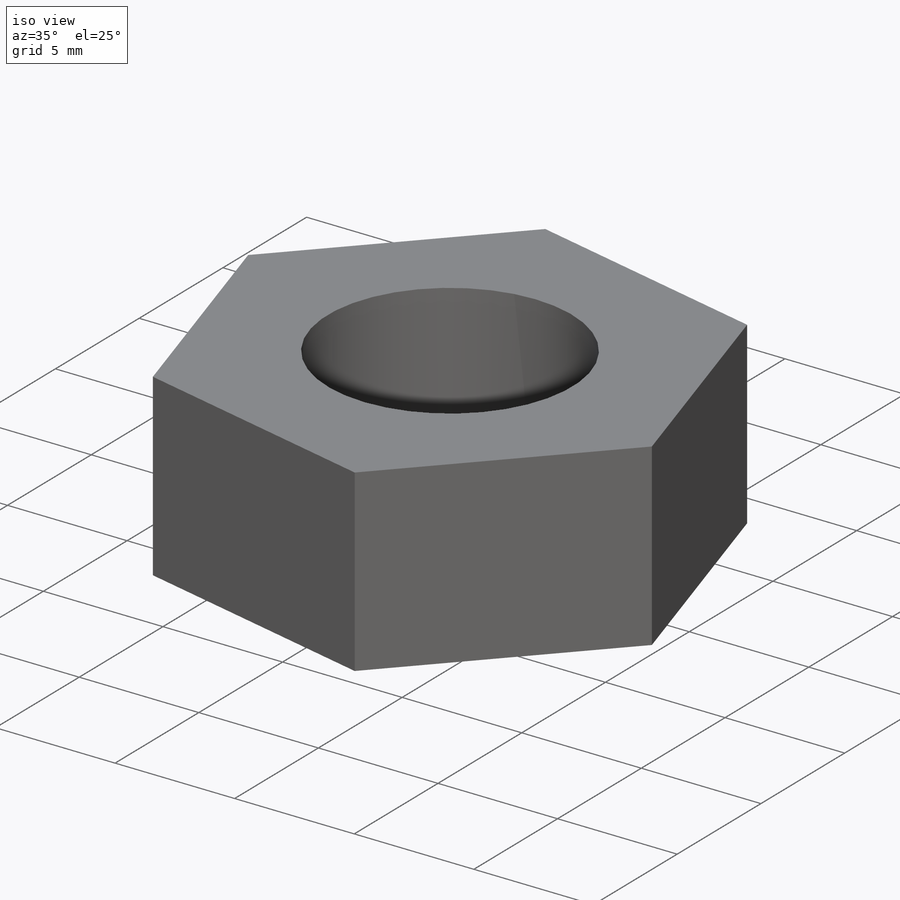
[diagram: iso view]
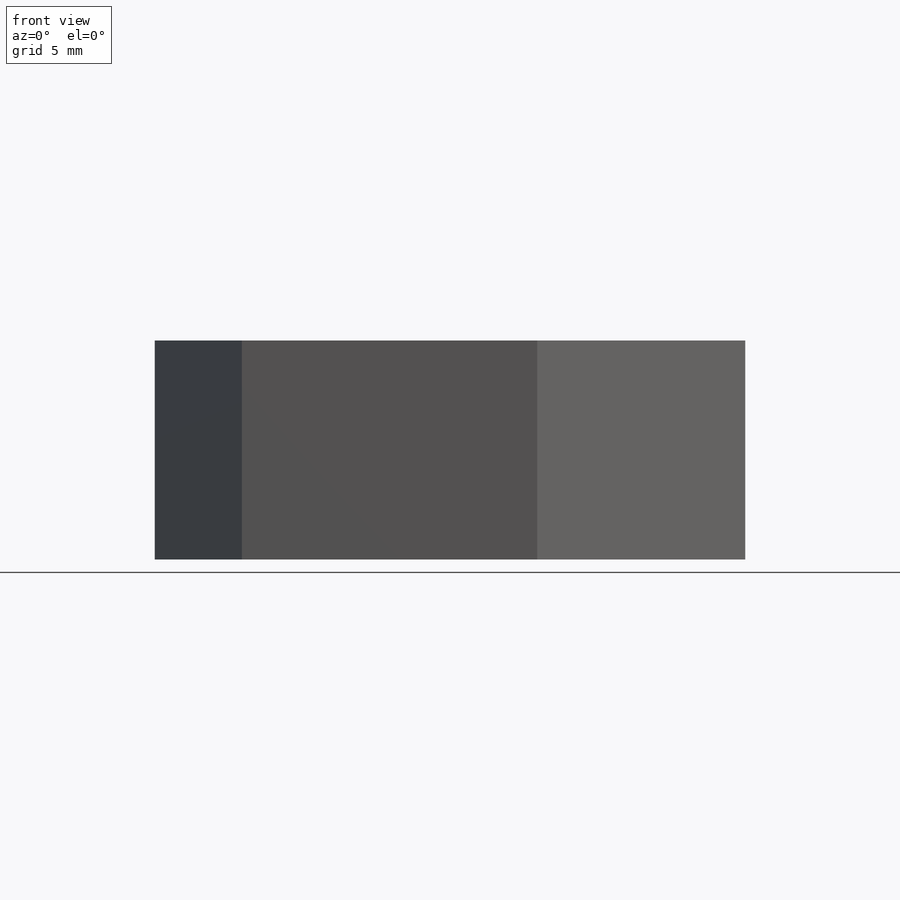
[diagram: front view]
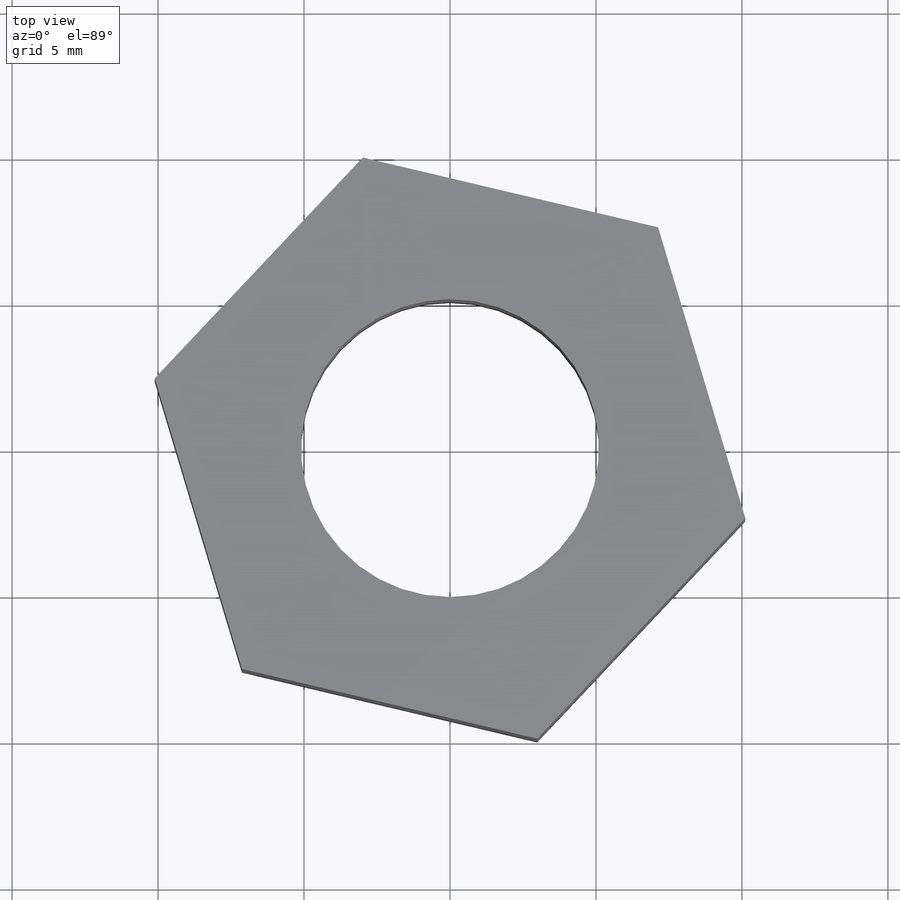
[diagram: top view]
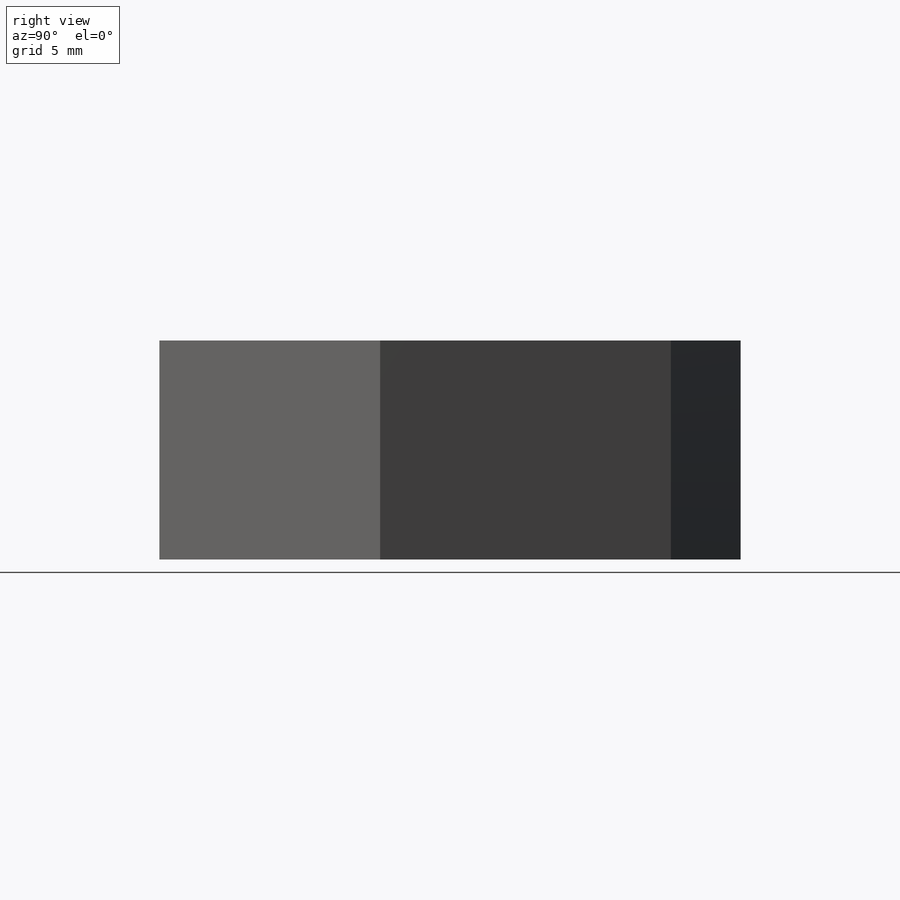
[diagram: right view]
SOLIDWORKS PART (.sldprt)
format: sldprt  version: not decoded by parser v0  size: 157,184 bytes
history: native  units: mm
features: sketch x4, plane x3, thread x3, material x1, extrude x1, hole x1 (+13 scaffold rows collapsed)
feature tree (26):
  scaffold x13  (default folders/planes/origin — collapsed)
  material  "材质 <未指定>"
  plane  "前视基准面"
  plane  "上视基准面"
  plane  "右视基准面"
  sketch  "草图1"  dims[D1=18.0mm]
  extrude  "凸台-拉伸1"  Depth=7.5mm
  sketch  "草图5"
  hole  "M12 螺纹孔1"  [1 undecoded]
  sketch  "3D草图3"  dims[D1=0.0mm]
  sketch  "草图6"  dims[hole-wizard template sketch: 46 standard entries collapsed; hole parameters kept: c15.螺纹孔钻头直径=10.2mm c15.螺纹孔钻头深度=29.25mm c15.D3=~14.816244mm c15.导头角度=118.0deg]
  thread  "孔螺蚊线1"  Diameter=7.5mm  [1 undecoded]
  thread  "孔螺蚊线2"  Diameter=7.5mm  [1 undecoded]
  thread  "孔螺蚊线3"  Diameter=7.5mm  [1 undecoded]
decode coverage: 7 of 9 modeling features carry decoded parameters
note: ~ marks probable driven/reference dimensions
note: 4 parameter values undecoded
note: suppression state not decoded; provenance and decode notes live in map.json
